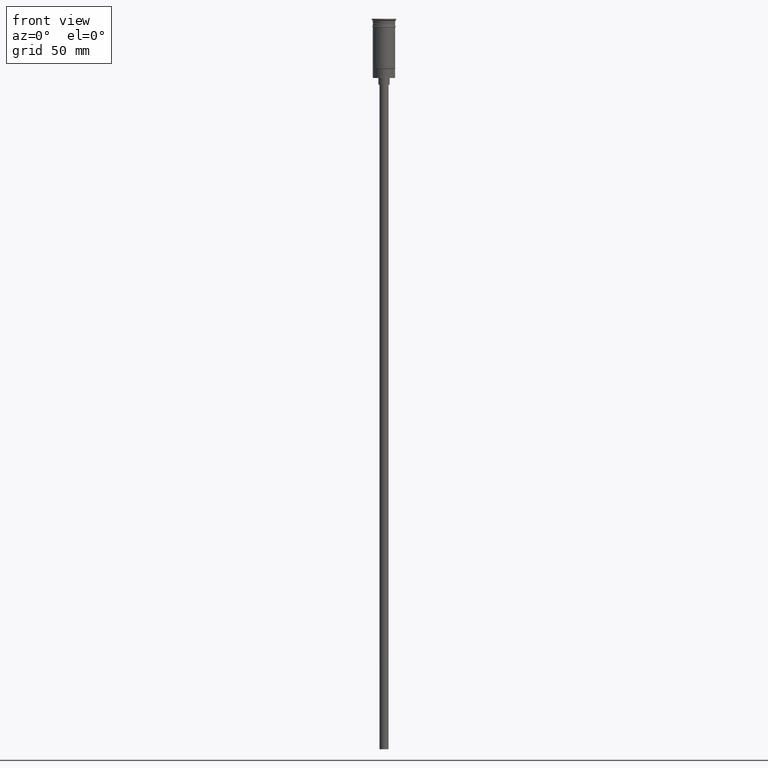
[diagram: clean part render]
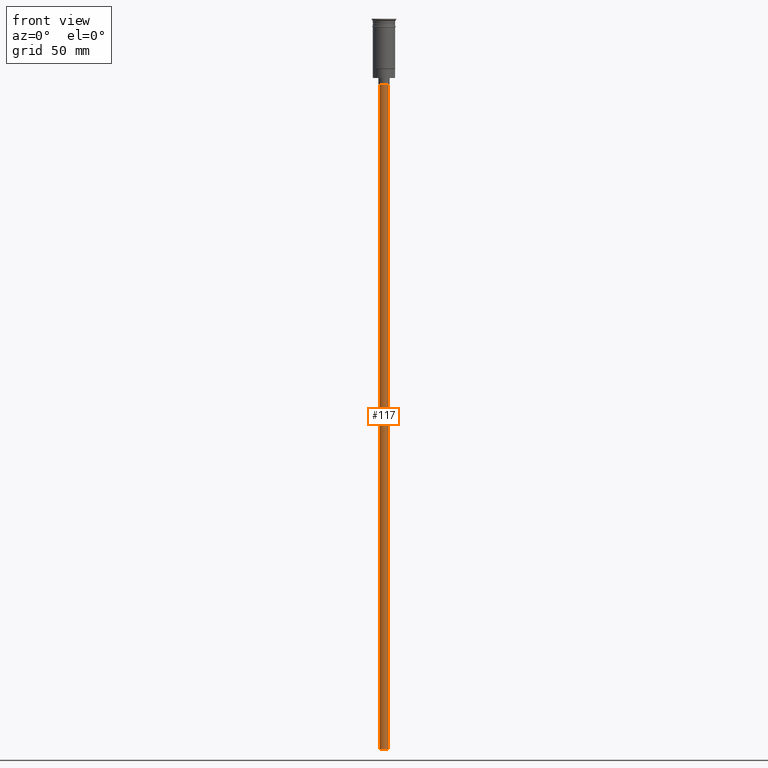
[diagram: same view with one face highlighted and labeled with its STEP entity id]
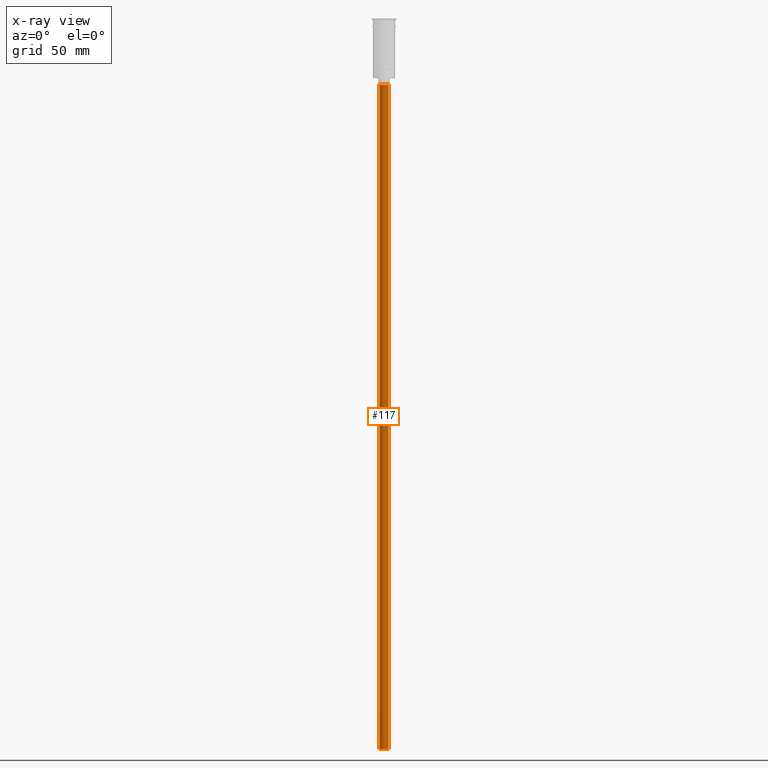
[diagram: x-ray of the same camera — body ghosted, the highlighted face saturated]
A machine part, front view. The second image highlights one B-rep face of the part: STEP entity #117.
The next image is the same camera in x-ray: the body ghosted, the highlighted face saturated — about 0% of this face is hidden behind the body in this view.
In plain terms, the highlighted cylindrical surface (edge-blend (fillet) strip) has radius 2 mm, axis along (-0, -0, 1).
Its self-contained STEP definition (entity closure, byte-faithful):
#22 = CYLINDRICAL_SURFACE ( 'NONE', #845, 2.000000000000000000 ) ;
#31 = AXIS2_PLACEMENT_3D ( 'NONE', #43, #1251, #649 ) ;
#43 = CARTESIAN_POINT ( 'NONE',  ( 0.000000000000000000, 0.000000000000000000, -326.5000000000000000 ) ) ;
#58 = ORIENTED_EDGE ( 'NONE', *, *, #950, .T. ) ;
#113 = AXIS2_PLACEMENT_3D ( 'NONE', #758, #1409, #625 ) ;
#117 = ADVANCED_FACE ( 'NONE', ( #249 ), #22, .T. ) ;
#121 = CARTESIAN_POINT ( 'NONE',  ( 2.000000000000000000, 0.000000000000000000, -29.50000000000000000 ) ) ;
#134 = VECTOR ( 'NONE', #1232, 1000.000000000000000 ) ;
#162 = ORIENTED_EDGE ( 'NONE', *, *, #1227, .T. ) ;
#243 = CARTESIAN_POINT ( 'NONE',  ( 2.000000000000000000, 0.000000000000000000, -326.5000000000000000 ) ) ;
#249 = FACE_OUTER_BOUND ( 'NONE', #1122, .T. ) ;
#307 = VERTEX_POINT ( 'NONE', #1166 ) ;
#363 = LINE ( 'NONE', #479, #134 ) ;
#420 = ORIENTED_EDGE ( 'NONE', *, *, #1108, .F. ) ;
#453 = CIRCLE ( 'NONE', #31, 2.000000000000000000 ) ;
#479 = CARTESIAN_POINT ( 'NONE',  ( 2.000000000000000000, 0.000000000000000000, -326.5000000000000000 ) ) ;
#625 = DIRECTION ( 'NONE',  ( -1.000000000000000000, 0.000000000000000000, 0.000000000000000000 ) ) ;
#629 = VERTEX_POINT ( 'NONE', #243 ) ;
#649 = DIRECTION ( 'NONE',  ( -1.000000000000000000, 0.000000000000000000, 0.000000000000000000 ) ) ;
#653 = CIRCLE ( 'NONE', #113, 2.000000000000000000 ) ;
#695 = EDGE_CURVE ( 'NONE', #893, #307, #1043, .T. ) ;
#758 = CARTESIAN_POINT ( 'NONE',  ( 0.000000000000000000, 0.000000000000000000, -29.50000000000000000 ) ) ;
#845 = AXIS2_PLACEMENT_3D ( 'NONE', #1107, #1111, #1379 ) ;
#893 = VERTEX_POINT ( 'NONE', #1442 ) ;
#911 = CARTESIAN_POINT ( 'NONE',  ( -2.000000000000000000, 2.449293598294706414E-16, -326.5000000000000000 ) ) ;
#950 = EDGE_CURVE ( 'NONE', #629, #998, #363, .T. ) ;
#998 = VERTEX_POINT ( 'NONE', #121 ) ;
#1043 = LINE ( 'NONE', #911, #1506 ) ;
#1107 = CARTESIAN_POINT ( 'NONE',  ( 0.000000000000000000, 0.000000000000000000, -326.5000000000000000 ) ) ;
#1108 = EDGE_CURVE ( 'NONE', #629, #893, #453, .T. ) ;
#1111 = DIRECTION ( 'NONE',  ( -0.000000000000000000, -0.000000000000000000, 1.000000000000000000 ) ) ;
#1122 = EDGE_LOOP ( 'NONE', ( #1397, #420, #58, #162 ) ) ;
#1166 = CARTESIAN_POINT ( 'NONE',  ( -2.000000000000000000, 2.449293598294706414E-16, -29.50000000000000000 ) ) ;
#1227 = EDGE_CURVE ( 'NONE', #998, #307, #653, .T. ) ;
#1232 = DIRECTION ( 'NONE',  ( -0.000000000000000000, -0.000000000000000000, 1.000000000000000000 ) ) ;
#1251 = DIRECTION ( 'NONE',  ( 0.000000000000000000, 0.000000000000000000, -1.000000000000000000 ) ) ;
#1379 = DIRECTION ( 'NONE',  ( 1.000000000000000000, 0.000000000000000000, 0.000000000000000000 ) ) ;
#1397 = ORIENTED_EDGE ( 'NONE', *, *, #695, .F. ) ;
#1409 = DIRECTION ( 'NONE',  ( 0.000000000000000000, 0.000000000000000000, -1.000000000000000000 ) ) ;
#1418 = DIRECTION ( 'NONE',  ( -0.000000000000000000, -0.000000000000000000, 1.000000000000000000 ) ) ;
#1442 = CARTESIAN_POINT ( 'NONE',  ( -2.000000000000000000, 2.449293598294706414E-16, -326.5000000000000000 ) ) ;
#1506 = VECTOR ( 'NONE', #1418, 1000.000000000000000 ) ;